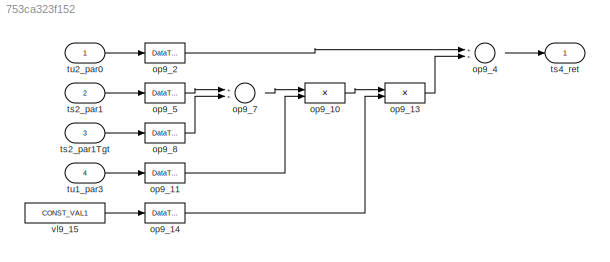
MODEL slx_753ca323f152
KIND model
CONFIG AbsTol = auto
CONFIG FixedStep = auto
CONFIG MaxStep = auto
CONFIG MinStep = auto
CONFIG RelTol = 1e-3
CONFIG SampleTimeConstraint = Unconstrained
CONFIG Solver = ode45
CONFIG SolverMode = Auto
CONFIG SolverName = ode45
CONFIG StartTime = 0.0
CONFIG StopTime = 10.0
BLOCK [Product] op9_10
  InputSameDT = off
  Inputs = **
  OutDataTypeStr = Inherit: Inherit via internal rule
  Ports = [2, 1]
  RndMeth = Floor
  SaturateOnIntegerOverflow = off
BLOCK [DataTypeConversion] op9_11
  OutDataTypeStr = int32
  RndMeth = Floor
  SaturateOnIntegerOverflow = off
BLOCK [Product] op9_13
  InputSameDT = off
  Inputs = */
  OutDataTypeStr = Inherit: Inherit via internal rule
  Ports = [2, 1]
  RndMeth = Floor
  SaturateOnIntegerOverflow = off
BLOCK [DataTypeConversion] op9_14
  OutDataTypeStr = int32
  RndMeth = Floor
  SaturateOnIntegerOverflow = off
BLOCK [DataTypeConversion] op9_2
  OutDataTypeStr = int32
  RndMeth = Floor
  SaturateOnIntegerOverflow = off
BLOCK [Sum] op9_4
  InputSameDT = off
  OutDataTypeStr = Inherit: Inherit via internal rule
  Ports = [2, 1]
  SaturateOnIntegerOverflow = off
BLOCK [DataTypeConversion] op9_5
  OutDataTypeStr = int32
  RndMeth = Floor
  SaturateOnIntegerOverflow = off
BLOCK [Sum] op9_7
  InputSameDT = off
  OutDataTypeStr = Inherit: Inherit via internal rule
  Ports = [2, 1]
  SaturateOnIntegerOverflow = off
BLOCK [DataTypeConversion] op9_8
  OutDataTypeStr = int32
  RndMeth = Floor
  SaturateOnIntegerOverflow = off
BLOCK [Inport] ts2_par1
  IconDisplay = Port number
  Port = 2
BLOCK [Inport] ts2_par1Tgt
  IconDisplay = Port number
  Port = 3
BLOCK [Outport] ts4_ret
  IconDisplay = Port number
BLOCK [Inport] tu1_par3
  IconDisplay = Port number
  Port = 4
BLOCK [Inport] tu2_par0
  IconDisplay = Port number
BLOCK [Constant] vl9_15
  Value = CONST_VAL1
LINE op9_10:1 -> op9_13:1
LINE op9_11:1 -> op9_10:2
LINE op9_13:1 -> op9_4:2
LINE op9_14:1 -> op9_13:2
LINE op9_2:1 -> op9_4:1
LINE op9_4:1 -> ts4_ret:1
LINE op9_5:1 -> op9_7:1
LINE op9_7:1 -> op9_10:1
LINE op9_8:1 -> op9_7:2
LINE ts2_par1:1 -> op9_5:1
LINE ts2_par1Tgt:1 -> op9_8:1
LINE tu1_par3:1 -> op9_11:1
LINE tu2_par0:1 -> op9_2:1
LINE vl9_15:1 -> op9_14:1
